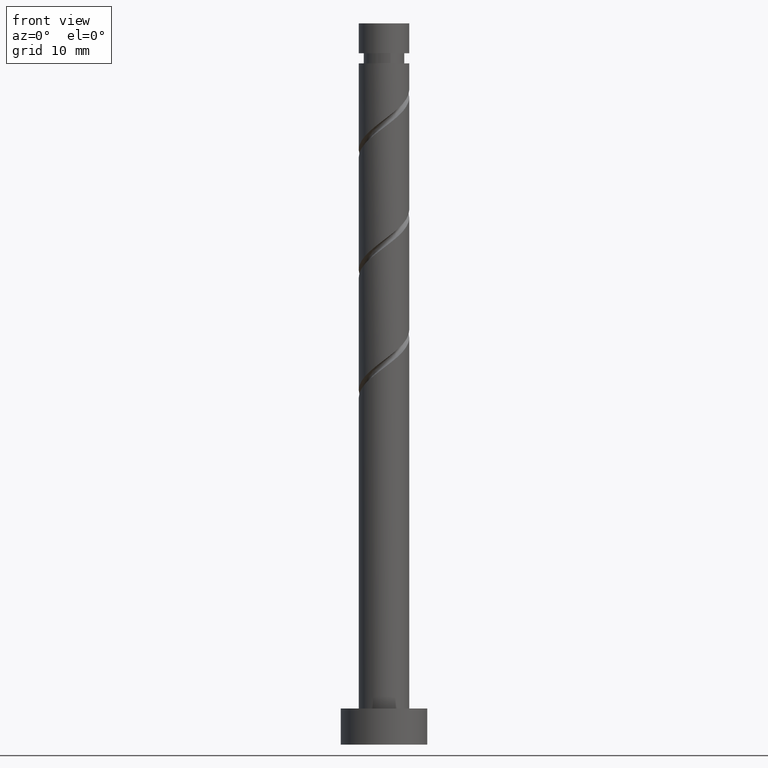
[diagram: clean part render]
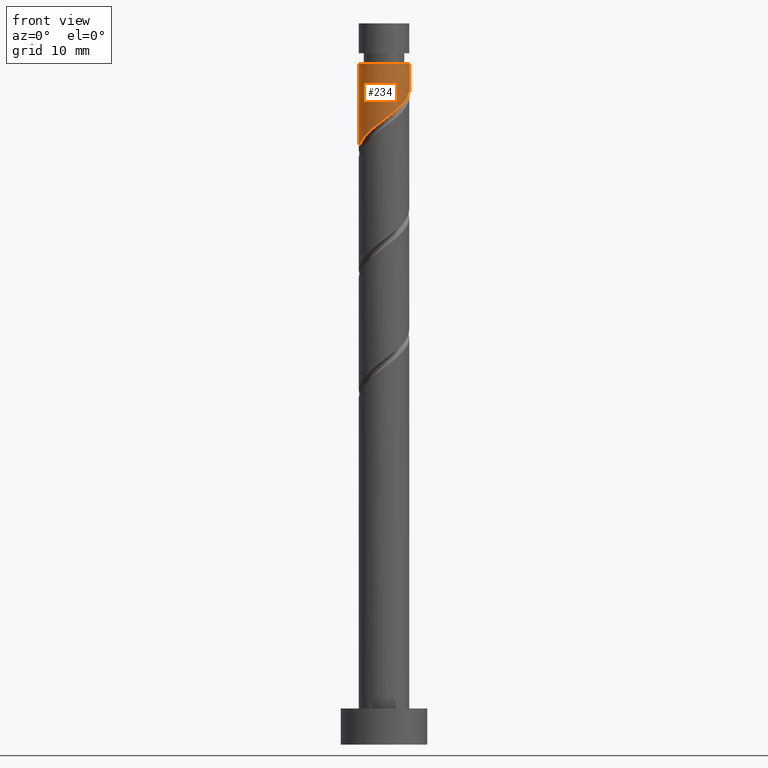
[diagram: same view with one face highlighted and labeled with its STEP entity id]
A machine part, front view. The second image highlights one B-rep face of the part: STEP entity #234.
In plain terms, the highlighted cylindrical surface (edge-blend (fillet) strip) has radius 3.5 mm, axis along (-0, -0, -1).
Its self-contained STEP definition (entity closure, byte-faithful):
#13 = CARTESIAN_POINT ( 'NONE',  ( 1.671218283206725719, -3.075228357354224951, 87.97248989127469088 ) ) ;
#38 = CARTESIAN_POINT ( 'NONE',  ( -0.6964912059746344308, -3.430000000000000160, 86.12063803942285745 ) ) ;
#49 = CARTESIAN_POINT ( 'NONE',  ( 3.482913278768106302, -0.7072357054910397567, 90.28730470608950043 ) ) ;
#65 = CARTESIAN_POINT ( 'NONE',  ( -3.122668711683166176, -1.696999519038117743, 83.80582322460804789 ) ) ;
#71 = DIRECTION ( 'NONE',  ( -0.000000000000000000, -0.000000000000000000, -1.000000000000000000 ) ) ;
#75 = LINE ( 'NONE', #81, #332 ) ;
#81 = CARTESIAN_POINT ( 'NONE',  ( -3.500000000000000000, 0.000000000000000000, 100.0000000000000000 ) ) ;
#130 = CARTESIAN_POINT ( 'NONE',  ( 3.030979049538565562, -1.855810672401390304, 89.36137878016359082 ) ) ;
#134 = EDGE_CURVE ( 'NONE', #551, #749, #695, .T. ) ;
#152 = VERTEX_POINT ( 'NONE', #1340 ) ;
#234 = ADVANCED_FACE ( 'NONE', ( #1205 ), #308, .T. ) ;
#251 = CARTESIAN_POINT ( 'NONE',  ( 3.499999999999999556, 7.394788440712422540E-16, 90.81815959441161112 ) ) ;
#269 = CARTESIAN_POINT ( 'NONE',  ( 3.498835021510411369, -0.09029669015107254226, 90.75026766905247655 ) ) ;
#287 = CARTESIAN_POINT ( 'NONE',  ( 2.622221531993306431, -2.318179077886494799, 88.89841581720061470 ) ) ;
#303 = CARTESIAN_POINT ( 'NONE',  ( -3.318712737967941973, -1.111820922113506027, 83.34286026164504335 ) ) ;
#308 = CYLINDRICAL_SURFACE ( 'NONE', #496, 3.500000000000000000 ) ;
#309 = CIRCLE ( 'NONE', #1132, 3.500000000000000888 ) ;
#332 = VECTOR ( 'NONE', #71, 1000.000000000000000 ) ;
#480 = ORIENTED_EDGE ( 'NONE', *, *, #696, .T. ) ;
#496 = AXIS2_PLACEMENT_3D ( 'NONE', #771, #868, #885 ) ;
#500 = CARTESIAN_POINT ( 'NONE',  ( 3.500000000000000444, -0.04515586016207169540, 90.78414222047923943 ) ) ;
#510 = CARTESIAN_POINT ( 'NONE',  ( -1.301292749804670024, -3.307189808560495159, 85.65767507645989554 ) ) ;
#527 = DIRECTION ( 'NONE',  ( -1.000000000000000000, 0.000000000000000000, 0.000000000000000000 ) ) ;
#551 = VERTEX_POINT ( 'NONE', #1013 ) ;
#552 = CARTESIAN_POINT ( 'NONE',  ( -3.499999999999999556, -2.001821517283766894E-15, 82.48482626107825411 ) ) ;
#613 = EDGE_CURVE ( 'NONE', #926, #152, #309, .T. ) ;
#622 = CARTESIAN_POINT ( 'NONE',  ( 2.213464014448048633, -2.780547483371599071, 88.43545285423768121 ) ) ;
#686 = CARTESIAN_POINT ( 'NONE',  ( 3.500000000000000888, 4.286263797015737088E-16, 94.45397137275617183 ) ) ;
#695 =( BOUNDED_CURVE ( )  B_SPLINE_CURVE ( 2, ( #251, #500, #269, #49, #734, #130, #287, #622, #13, #932, #1390, #717, #38, #510, #955, #1214, #1435, #65, #303, #1454, #970 ),
 .UNSPECIFIED., .F., .T. ) 
 B_SPLINE_CURVE_WITH_KNOTS ( ( 3, 2, 2, 2, 2, 2, 2, 2, 2, 2, 3 ),
 ( 0.3045248053855290071, 0.3055555555555555802, 0.3194444444444444198, 0.3333333333333333148, 0.3472222222222222099, 0.3611111111111111049, 0.3750000000000000000, 0.3888888888888888951, 0.4027777777777777901, 0.4166666666666666852, 0.4295248053855290626 ),
 .UNSPECIFIED. ) 
 CURVE ( )  GEOMETRIC_REPRESENTATION_ITEM ( )  RATIONAL_B_SPLINE_CURVE ( ( 0.9071930855141210337, 0.9080659294509687562, 0.9090909090909088386, 0.8952797754656434126, 0.9090909090909088386, 0.8952797754656434126, 0.9090909090909088386, 0.8952797754656434126, 0.9090909090909088386, 0.8952797754656434126, 0.9090909090909088386, 0.8952797754656434126, 0.9090909090909088386, 0.8952797754656434126, 0.9090909090909088386, 0.8952797754656434126, 0.9090909090909088386, 0.8952797754656434126, 0.9090909090909088386, 0.8963047551055834949, 0.9071930855141210337 ) ) 
 REPRESENTATION_ITEM ( '' )  );
#696 = EDGE_CURVE ( 'NONE', #152, #749, #75, .T. ) ;
#706 = ORIENTED_EDGE ( 'NONE', *, *, #134, .F. ) ;
#717 = CARTESIAN_POINT ( 'NONE',  ( -0.09168966214460039232, -3.552810191439505605, 86.58360100238580515 ) ) ;
#734 = CARTESIAN_POINT ( 'NONE',  ( 3.256946164153335932, -1.281523188946213088, 89.82434174312653852 ) ) ;
#749 = VERTEX_POINT ( 'NONE', #552 ) ;
#771 = CARTESIAN_POINT ( 'NONE',  ( 0.000000000000000000, 0.000000000000000000, 100.0000000000000000 ) ) ;
#865 = CARTESIAN_POINT ( 'NONE',  ( 0.000000000000000000, 0.000000000000000000, 94.45397137275617183 ) ) ;
#868 = DIRECTION ( 'NONE',  ( -0.000000000000000000, -0.000000000000000000, -1.000000000000000000 ) ) ;
#885 = DIRECTION ( 'NONE',  ( -1.000000000000000000, 0.000000000000000000, 0.000000000000000000 ) ) ;
#917 = CARTESIAN_POINT ( 'NONE',  ( 3.500000000000000000, 4.286263797015736595E-16, 100.0000000000000000 ) ) ;
#926 = VERTEX_POINT ( 'NONE', #686 ) ;
#932 = CARTESIAN_POINT ( 'NONE',  ( 1.128972551965402360, -3.369909231336852162, 87.50952692831175739 ) ) ;
#955 = CARTESIAN_POINT ( 'NONE',  ( -1.827616738303686095, -2.984931667203153172, 85.19471211349691941 ) ) ;
#970 = CARTESIAN_POINT ( 'NONE',  ( -3.499999999999999556, -2.001821517283766894E-15, 82.48482626107825411 ) ) ;
#1013 = CARTESIAN_POINT ( 'NONE',  ( 3.500000000000000000, 7.394788440712422540E-16, 90.81815959441161112 ) ) ;
#1031 = ORIENTED_EDGE ( 'NONE', *, *, #613, .T. ) ;
#1056 = EDGE_LOOP ( 'NONE', ( #1316, #1031, #480, #706 ) ) ;
#1118 = EDGE_CURVE ( 'NONE', #926, #551, #1483, .T. ) ;
#1132 = AXIS2_PLACEMENT_3D ( 'NONE', #865, #1324, #527 ) ;
#1205 = FACE_OUTER_BOUND ( 'NONE', #1056, .T. ) ;
#1214 = CARTESIAN_POINT ( 'NONE',  ( -2.353940726802702166, -2.662673525845812517, 84.73174915053395750 ) ) ;
#1288 = VECTOR ( 'NONE', #1377, 1000.000000000000000 ) ;
#1316 = ORIENTED_EDGE ( 'NONE', *, *, #1118, .F. ) ;
#1324 = DIRECTION ( 'NONE',  ( -0.000000000000000000, -0.000000000000000000, -1.000000000000000000 ) ) ;
#1340 = CARTESIAN_POINT ( 'NONE',  ( -3.500000000000000888, 0.000000000000000000, 94.45397137275617183 ) ) ;
#1377 = DIRECTION ( 'NONE',  ( -0.000000000000000000, -0.000000000000000000, -1.000000000000000000 ) ) ;
#1390 = CARTESIAN_POINT ( 'NONE',  ( 0.5186414449104017610, -3.461359711388177551, 87.04656396534875284 ) ) ;
#1435 = CARTESIAN_POINT ( 'NONE',  ( -2.738304719242934393, -2.179836522441964242, 84.26878618757099559 ) ) ;
#1454 = CARTESIAN_POINT ( 'NONE',  ( -3.500000000000000888, -0.5706903013715982631, 82.91474577344389729 ) ) ;
#1483 = LINE ( 'NONE', #917, #1288 ) ;